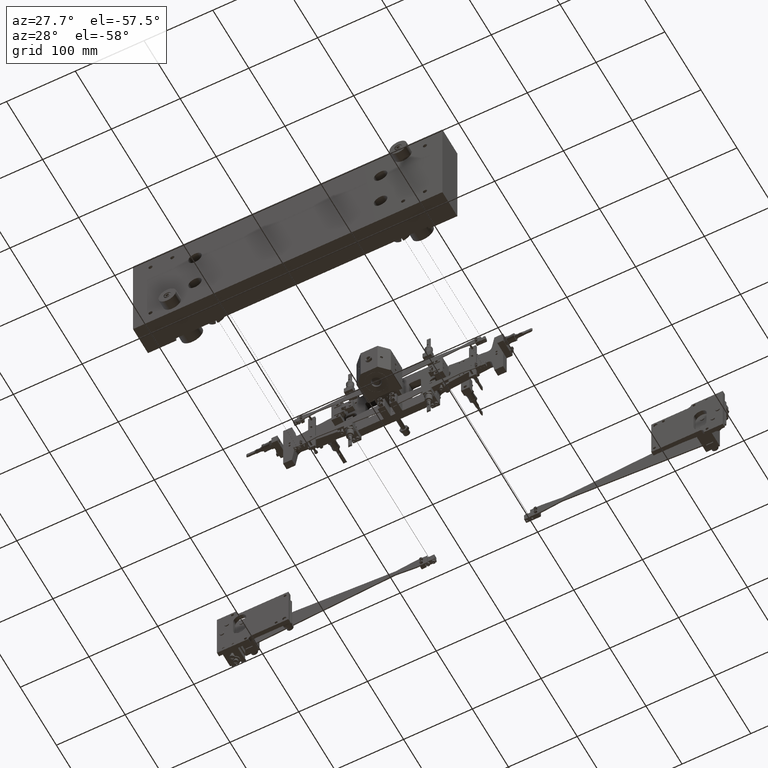
[diagram: clean part render]
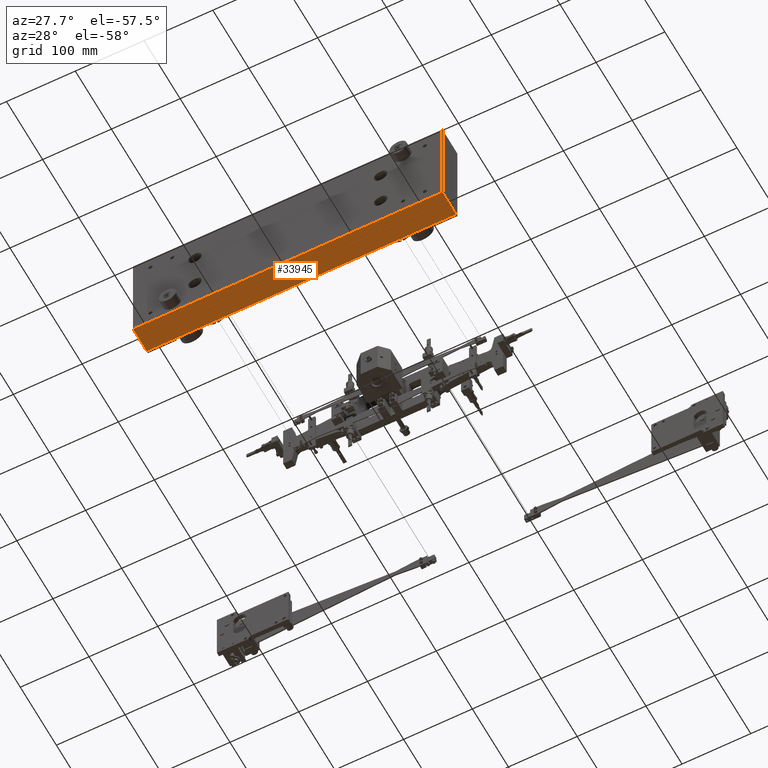
[diagram: same view with one face highlighted and labeled with its STEP entity id]
A machine part, auxiliary view. The second image highlights one B-rep face of the part: STEP entity #33945.
In plain terms, the highlighted planar face has unit normal (-0, 0, 1).
Its self-contained STEP definition (entity closure, byte-faithful):
#2234 = VERTEX_POINT ( 'NONE', #7958 ) ;
#5064 = VERTEX_POINT ( 'NONE', #66194 ) ;
#7276 = VECTOR ( 'NONE', #40029, 39.37007874015748100 ) ;
#7958 = CARTESIAN_POINT ( 'NONE',  ( 2.952755905511815500, -0.7500000000000004400, -8.858267716535451100 ) ) ;
#8063 = EDGE_LOOP ( 'NONE', ( #66142, #51591, #23148, #60197 ) ) ;
#8093 = DIRECTION ( 'NONE',  ( -5.551115123125790100E-017, -2.220446049250310400E-016, -1.000000000000000000 ) ) ;
#8515 = EDGE_CURVE ( 'NONE', #12765, #2234, #43656, .T. ) ;
#12765 = VERTEX_POINT ( 'NONE', #19727 ) ;
#17266 = CARTESIAN_POINT ( 'NONE',  ( 2.952755905511814700, 0.7500000000000026600, 8.858267716535452900 ) ) ;
#17872 = CARTESIAN_POINT ( 'NONE',  ( 2.952755905511814700, 0.7499999999999983300, -8.858267716535452900 ) ) ;
#19727 = CARTESIAN_POINT ( 'NONE',  ( 2.952755905511814200, -0.7499999999999983300, 8.858267716535452900 ) ) ;
#20131 = DIRECTION ( 'NONE',  ( -1.000000000000000000, -5.551115123125809800E-017, 5.551115123125791300E-017 ) ) ;
#21469 = VECTOR ( 'NONE', #48103, 39.37007874015748100 ) ;
#23148 = ORIENTED_EDGE ( 'NONE', *, *, #47070, .F. ) ;
#23972 = VECTOR ( 'NONE', #60382, 39.37007874015748100 ) ;
#24361 = CARTESIAN_POINT ( 'NONE',  ( 2.952755905511814700, 0.7499999999999983300, -8.858267716535452900 ) ) ;
#29635 = AXIS2_PLACEMENT_3D ( 'NONE', #66268, #20131, #56161 ) ;
#30020 = VECTOR ( 'NONE', #8093, 39.37007874015748100 ) ;
#31540 = EDGE_CURVE ( 'NONE', #5064, #46524, #42388, .T. ) ;
#33945 = ADVANCED_FACE ( 'NONE', ( #66031 ), #51006, .F. ) ;
#38969 = CARTESIAN_POINT ( 'NONE',  ( 2.952755905511814200, -0.7499999999999983300, 8.858267716535452900 ) ) ;
#40029 = DIRECTION ( 'NONE',  ( 5.551115123125823400E-017, 1.000000000000000000, 1.665334536937733300E-016 ) ) ;
#41444 = EDGE_CURVE ( 'NONE', #2234, #46524, #51387, .T. ) ;
#42388 = LINE ( 'NONE', #17266, #21469 ) ;
#43656 = LINE ( 'NONE', #38969, #30020 ) ;
#46524 = VERTEX_POINT ( 'NONE', #17872 ) ;
#47070 = EDGE_CURVE ( 'NONE', #12765, #5064, #60481, .T. ) ;
#48103 = DIRECTION ( 'NONE',  ( -5.551115123125790100E-017, -2.220446049250310400E-016, -1.000000000000000000 ) ) ;
#51006 = PLANE ( 'NONE',  #29635 ) ;
#51387 = LINE ( 'NONE', #24361, #23972 ) ;
#51591 = ORIENTED_EDGE ( 'NONE', *, *, #31540, .F. ) ;
#55560 = CARTESIAN_POINT ( 'NONE',  ( 2.952755905511814700, 0.7500000000000026600, 8.858267716535452900 ) ) ;
#56161 = DIRECTION ( 'NONE',  ( 5.551115123125790100E-017, 2.220446049250310400E-016, 1.000000000000000000 ) ) ;
#60197 = ORIENTED_EDGE ( 'NONE', *, *, #8515, .T. ) ;
#60382 = DIRECTION ( 'NONE',  ( 5.551115123125823400E-017, 1.000000000000000000, 1.665334536937733300E-016 ) ) ;
#60481 = LINE ( 'NONE', #55560, #7276 ) ;
#66031 = FACE_OUTER_BOUND ( 'NONE', #8063, .T. ) ;
#66142 = ORIENTED_EDGE ( 'NONE', *, *, #41444, .T. ) ;
#66194 = CARTESIAN_POINT ( 'NONE',  ( 2.952755905511814700, 0.7500000000000026600, 8.858267716535452900 ) ) ;
#66268 = CARTESIAN_POINT ( 'NONE',  ( 2.952755905511814700, 0.7500000000000026600, 8.858267716535452900 ) ) ;